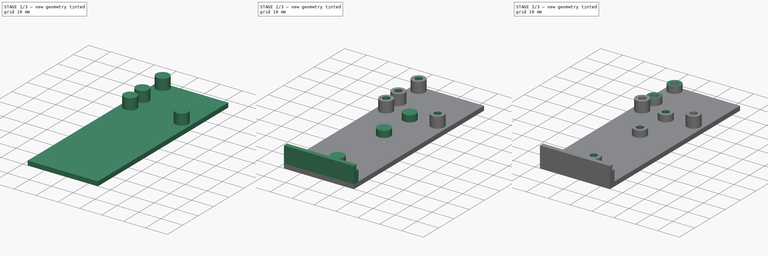
[diagram: build sequence overview — one tinted view per stage of 3, left to right]
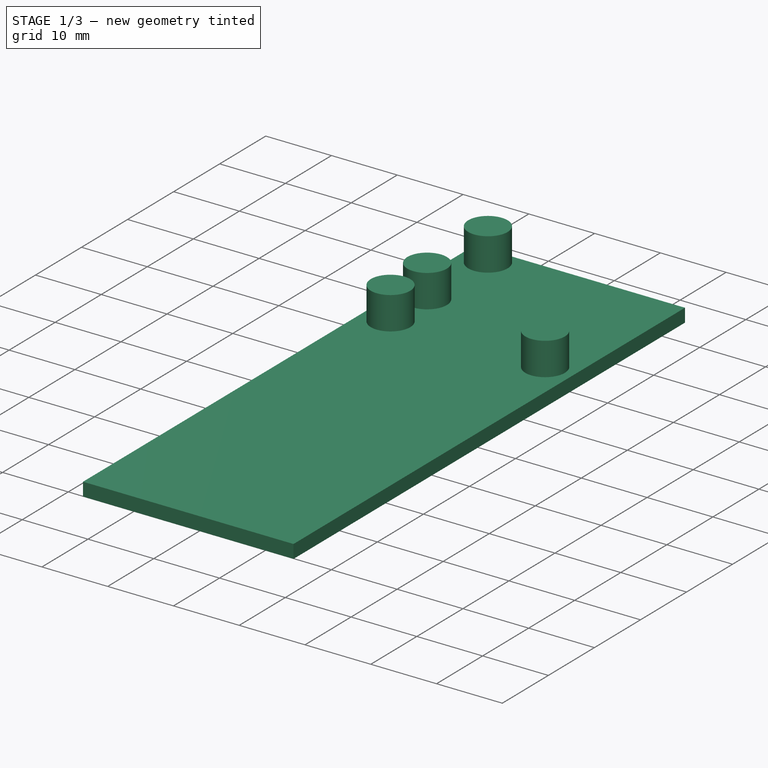
[diagram: stage 1 of 3 — iso view after this stage's code; geometry added in this stage tinted green]
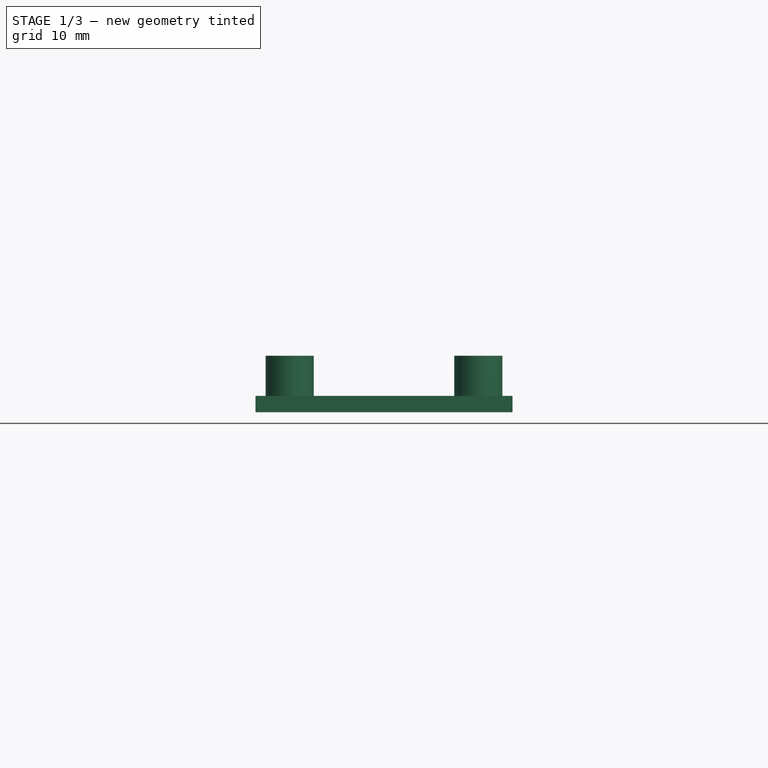
[diagram: stage 1 of 3 — front view after this stage's code; geometry added in this stage tinted green]
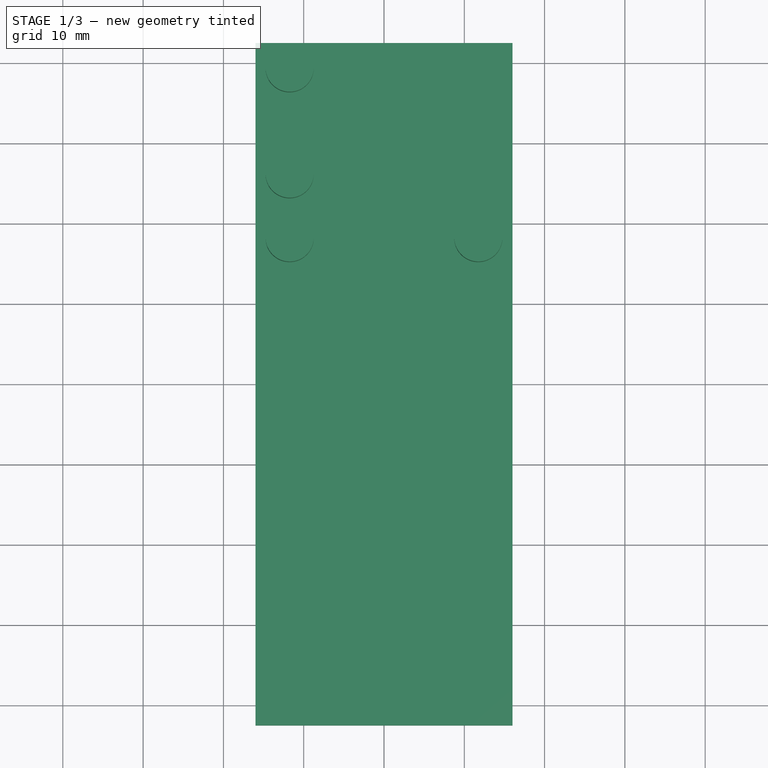
[diagram: stage 1 of 3 — top view after this stage's code; geometry added in this stage tinted green]
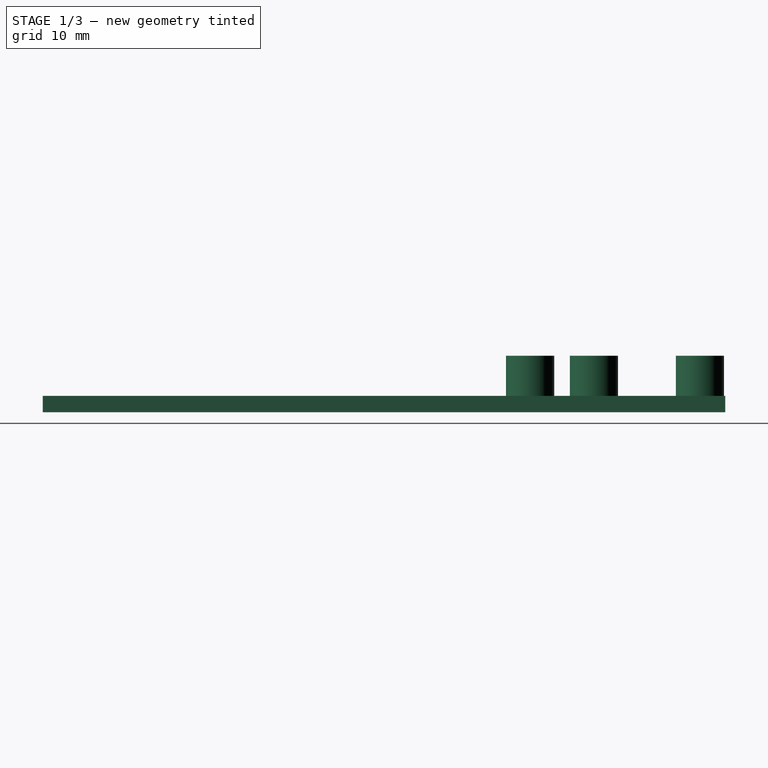
[diagram: stage 1 of 3 — right view after this stage's code; geometry added in this stage tinted green]
FCSTD DOCUMENT  (FreeCAD 0.19R)
Label: dimmer+digispark
License: All rights reserved
LicenseURL: http://en.wikipedia.org/wiki/All_rights_reserved
objects: Sketcher::SketchObject×4, PartDesign::Pad×4, PartDesign::Hole×2, PartDesign::Pocket×1, PartDesign::Body×1
note: 19 computed .brp shape members not serialized (recipe doc carries the construction recipe); baked Part::Feature solids carry a one-line shape summary decoded from their .brp

FEATURE [Sketcher::SketchObject] Sketch
  MapMode = 5
  Support = -> [XY_Plane]
  sketch-geometry (4):
    g0: LineSegment StartX=-16 StartY=42.5 StartZ=0 EndX=16 EndY=42.5 EndZ=0
    g1: LineSegment StartX=16 StartY=42.5 StartZ=0 EndX=16 EndY=-42.5 EndZ=0
    g2: LineSegment StartX=16 StartY=-42.5 StartZ=0 EndX=-16 EndY=-42.5 EndZ=0
    g3: LineSegment StartX=-16 StartY=-42.5 StartZ=0 EndX=-16 EndY=42.5 EndZ=0
  constraints (10):
    c: Coincident(g0,g1)
    c: Coincident(g1,g2)
    c: Coincident(g2,g3)
    c: Coincident(g3,g0)
    c: Horizontal(g2)
    c: Vertical(g1)
    c: Symmetric(g0,g0,g-2)
    c: Symmetric(g2,g0,g-1)
    c: DistanceY(g3,g3) = 85
    c: DistanceX(g0,g0) = 32
FEATURE [PartDesign::Pad] Pad  label="площадка основания"
  Length = 2.05
  Length2 = 100
  Profile = -> Sketch
  Type = 0
FEATURE [Sketcher::SketchObject] Sketch002
  ExternalGeometry = -> [Pad]
  MapMode = 5
  Placement = pos=(0,0,2.05) rot=(0,0,1;0rad)
  Support = -> [Pad]
  sketch-geometry (12):
    g0: LineSegment [constr] StartX=-15 StartY=21.5 StartZ=0 EndX=15 EndY=21.5 EndZ=0
    g1: LineSegment [constr] StartX=15 StartY=21.5 StartZ=0 EndX=15 EndY=-41.5 EndZ=0
    g2: LineSegment [constr] StartX=15 StartY=-41.5 StartZ=0 EndX=-15 EndY=-41.5 EndZ=0
    g3: LineSegment [constr] StartX=-15 StartY=-41.5 StartZ=0 EndX=-15 EndY=21.5 EndZ=0
    g4: Circle CenterX=-11.75 CenterY=18.2 CenterZ=0 NormalX=0 NormalY=0 NormalZ=1 AngleXU=0 Radius=3
    g5: Circle CenterX=11.75 CenterY=18.2 CenterZ=0 NormalX=0 NormalY=0 NormalZ=1 AngleXU=0 Radius=3
    g6: LineSegment [constr] StartX=-13.95 StartY=41.5 StartZ=0 EndX=6.55 EndY=41.5 EndZ=0
    g7: LineSegment [constr] StartX=6.55 StartY=41.5 StartZ=0 EndX=6.55 EndY=24 EndZ=0
    g8: LineSegment [constr] StartX=6.55 StartY=24 StartZ=0 EndX=-13.95 EndY=24 EndZ=0
    g9: LineSegment [constr] StartX=-13.95 StartY=24 StartZ=0 EndX=-13.95 EndY=41.5 EndZ=0
    g10: Circle CenterX=-11.75 CenterY=39.35 CenterZ=0 NormalX=0 NormalY=0 NormalZ=1 AngleXU=0 Radius=3
    g11: Circle CenterX=-11.75 CenterY=26.15 CenterZ=0 NormalX=0 NormalY=0 NormalZ=1 AngleXU=0 Radius=3
  constraints (34):
    c: Coincident(g0,g1)
    c: Coincident(g1,g2)
    c: Coincident(g2,g3)
    c: Coincident(g3,g0)
    c: Horizontal(g2)
    c: Vertical(g1)
    c: Vertical(g3)
    c: DistanceY(g3,g3) = 63
    c: DistanceX(g0,g0) = 30
    c: Symmetric(g0,g0,g-2)
    c: Symmetric(g4,g5,g-2)
    c: DistanceX(g4,g5) = 23.5
    c: DistanceY(g5,g0) = 3.3
    c: DistanceY(g-3,g2) = 1
    c: Diameter(g5) = 6
    c: Equal(g5,g4)
    c: Coincident(g6,g7)
    c: Coincident(g7,g8)
    c: Coincident(g8,g9)
    c: Coincident(g9,g6)
    c: Horizontal(g8)
    c: Vertical(g7)
    c: Vertical(g9)
    c: DistanceX(g6,g6) = 20.5
    c: DistanceY(g7,g7) = 17.5
    c: DistanceY(g6,g-4) = 1
    c: Horizontal(g6)
    c: Vertical(g11,g10)
    c: Diameter(g10) = 6
    c: Equal(g10,g11)
    c: DistanceY(g8,g11) = 2.15
    c: DistanceY(g10,g6) = 2.15
    c: DistanceX(g10,g6) = 18.3
    c: Vertical(g11,g4)
FEATURE [PartDesign::Pad] Pad001  label="опоры"
  BaseFeature = -> Pad
  Length = 5
  Length2 = 100
  Profile = -> Sketch002
  Type = 0
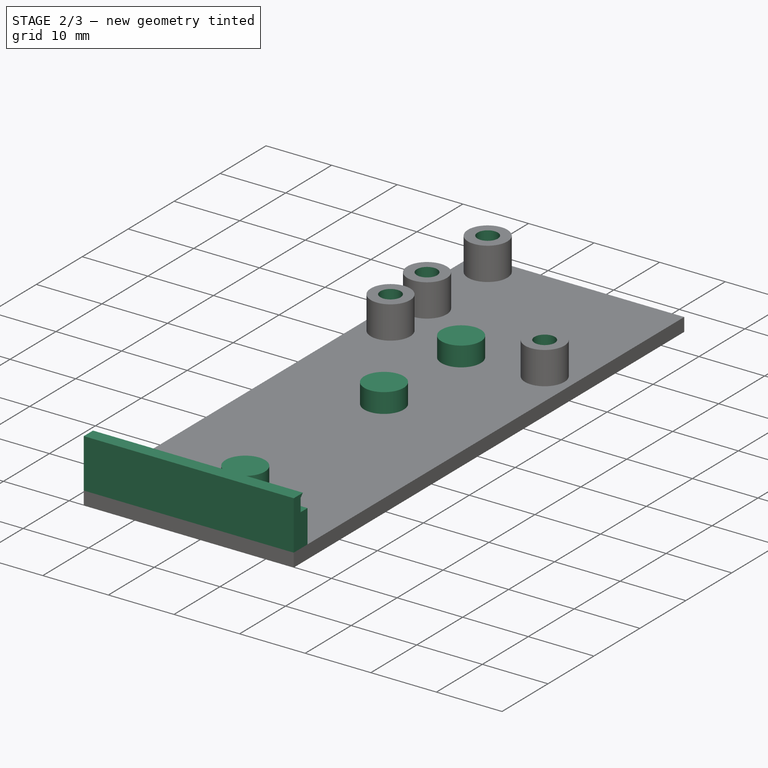
[diagram: stage 2 of 3 — iso view after this stage's code; geometry added in this stage tinted green]
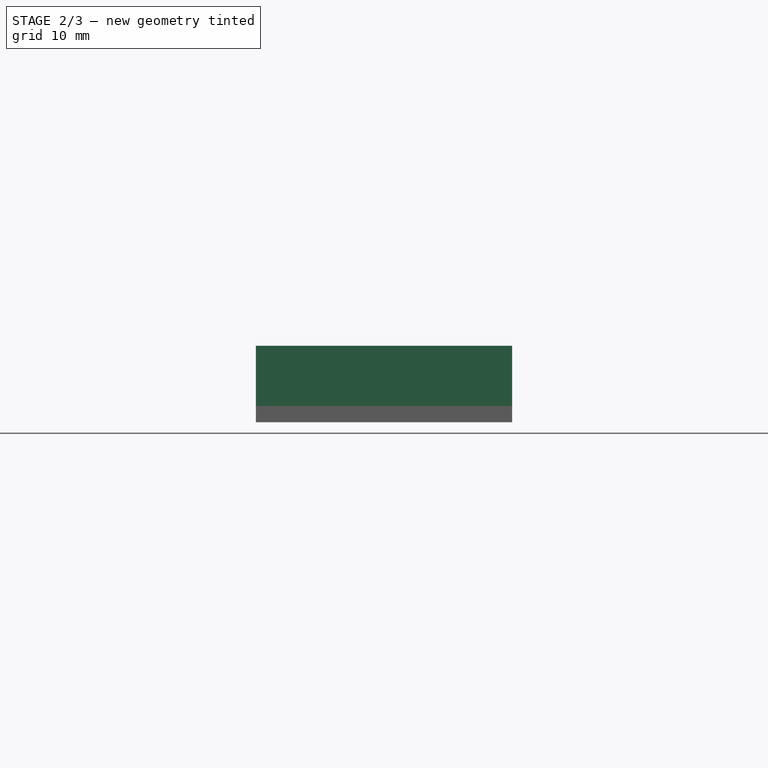
[diagram: stage 2 of 3 — front view after this stage's code; geometry added in this stage tinted green]
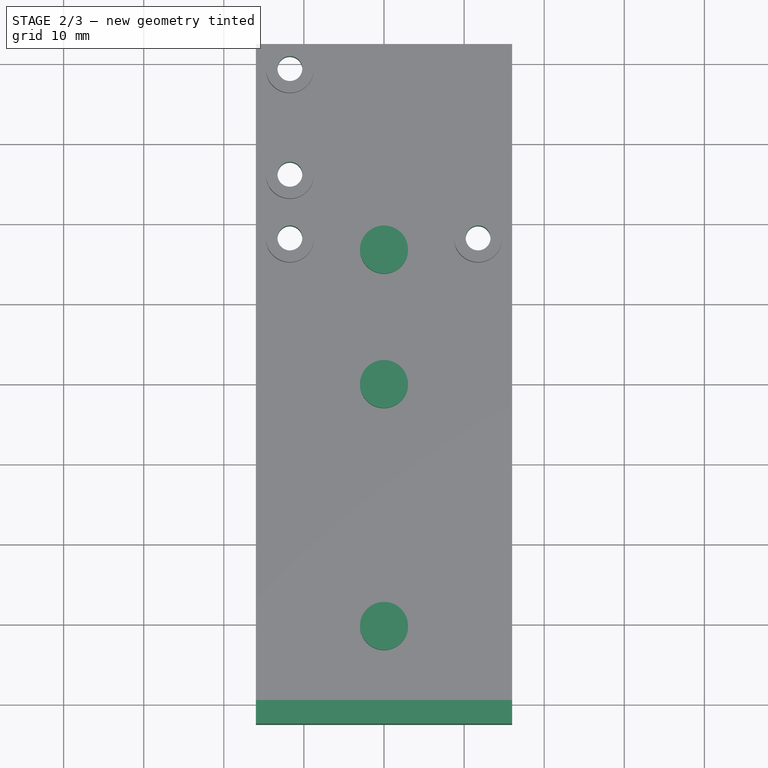
[diagram: stage 2 of 3 — top view after this stage's code; geometry added in this stage tinted green]
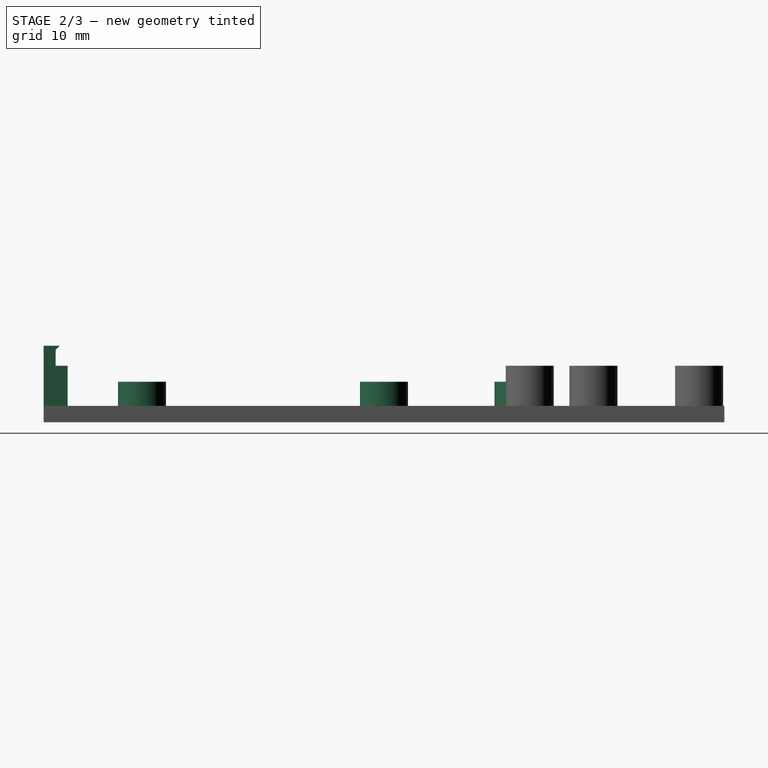
[diagram: stage 2 of 3 — right view after this stage's code; geometry added in this stage tinted green]
FEATURE [Sketcher::SketchObject] Sketch003
  ExternalGeometry = -> [Pad001]
  MapMode = 5
  Placement = pos=(-16,0,0) rot=(0.57735,-0.57735,-0.57735;2.0944rad)
  Support = -> [Pad001]
  sketch-geometry (7):
    g0: LineSegment StartX=42.5 StartY=2.05 StartZ=0 EndX=42.5 EndY=9.55 EndZ=0
    g1: LineSegment StartX=42.5 StartY=9.55 StartZ=0 EndX=40.5 EndY=9.55 EndZ=0
    g2: LineSegment StartX=41 StartY=7.05 StartZ=0 EndX=39.5 EndY=7.05 EndZ=0
    g3: LineSegment StartX=39.5 StartY=7.05 StartZ=0 EndX=39.5 EndY=2.05 EndZ=0
    g4: LineSegment StartX=39.5 StartY=2.05 StartZ=0 EndX=42.5 EndY=2.05 EndZ=0
    g5: LineSegment StartX=41 StartY=7.05 StartZ=0 EndX=41 EndY=9.05 EndZ=0
    g6: LineSegment StartX=41 StartY=9.05 StartZ=0 EndX=40.5 EndY=9.55 EndZ=0
  constraints (20):
    c: Coincident(g0,g-3)
    c: Vertical(g0)
    c: Coincident(g1,g0)
    c: Horizontal(g1)
    c: Coincident(g3,g2)
    c: PointOnObject(g3,g-3)
    c: Vertical(g3)
    c: Coincident(g4,g3)
    c: Coincident(g4,g0)
    c: Horizontal(g2)
    c: DistanceX(g4,g4) = 3
    c: DistanceX(g2,g2) = 1.5
    c: Coincident(g5,g2)
    c: Vertical(g5)
    c: Coincident(g6,g5)
    c: Coincident(g6,g1)
    c: DistanceY(g5,g5) = 2
    c: DistanceY(g3,g3) = 5
    c: Angle(g6,g1) = 0.785398
    c: DistanceX(g1,g1) = 2
FEATURE [PartDesign::Hole] Hole
  BaseFeature = -> Pad001
  Depth = 25
  DepthType = 0
  Diameter = 3.1
  DrillPoint = 1
  DrillPointAngle = 118
  HoleCutCountersinkAngle = 90
  HoleCutDepth = 0
  HoleCutDiameter = 0
  HoleCutType = 0
  ModelActualThread = false
  Profile = -> Pad001 [Face13,Face12,Face11,Face14]
  Tapered = false
  TaperedAngle = 90
  ThreadAngle = 0
  ThreadClass = 0
  ThreadCutOffInner = 0
  ThreadCutOffOuter = 0
  ThreadDirection = 0
  ThreadFit = 0
  ThreadPitch = 0
  ThreadSize = 0
  ThreadType = 0
  Threaded = false
FEATURE [PartDesign::Pad] Pad002  label="скоба"
  BaseFeature = -> Hole
  Length = 10
  Length2 = 100
  Profile = -> Sketch003
  Reversed = true
  Type = 3
  UpToFace = -> Pad001 [Face3]
FEATURE [Sketcher::SketchObject] Sketch004
  MapMode = 5
  Placement = pos=(0,0,2.05) rot=(0,0,1;0rad)
  Support = -> [Pad002]
  sketch-geometry (3):
    g0: Circle CenterX=0 CenterY=0 CenterZ=0 NormalX=0 NormalY=0 NormalZ=1 AngleXU=0 Radius=3
    g1: Circle CenterX=0 CenterY=16.789 CenterZ=0 NormalX=0 NormalY=0 NormalZ=1 AngleXU=0 Radius=3
    g2: Circle CenterX=0 CenterY=-30.211 CenterZ=0 NormalX=0 NormalY=0 NormalZ=1 AngleXU=0 Radius=3
  constraints (7):
    c: Coincident(g0,g-1)
    c: PointOnObject(g1,g-2)
    c: DistanceY(g2,g1) = 47
    c: Diameter(g2) = 6
    c: Equal(g2,g0)
    c: Equal(g2,g1)
    c: PointOnObject(g2,g-2)
FEATURE [PartDesign::Pad] Pad003
  BaseFeature = -> Pad002
  Length = 3
  Length2 = 100
  Profile = -> Sketch004
  Type = 0
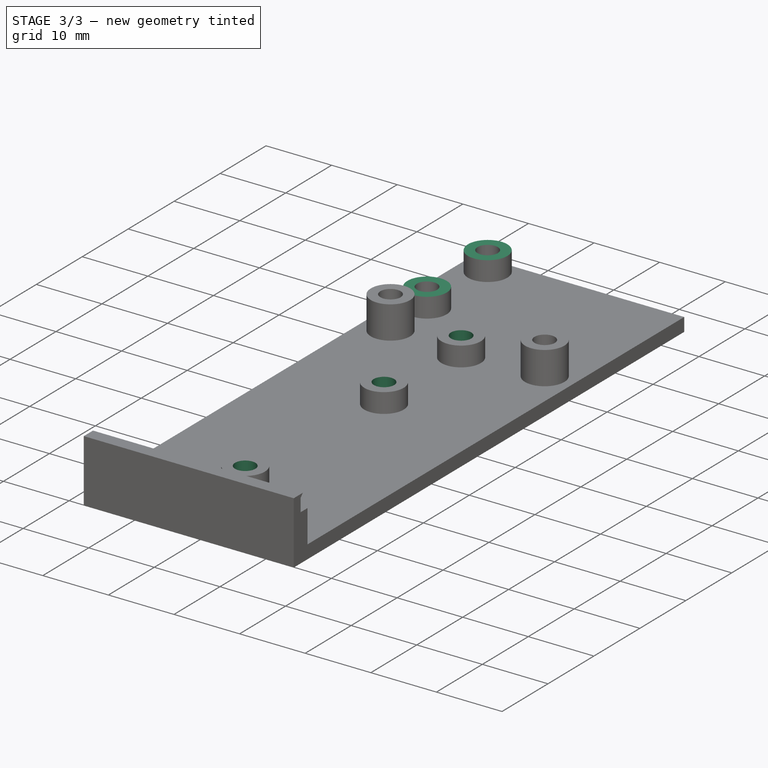
[diagram: stage 3 of 3 — iso view after this stage's code; geometry added in this stage tinted green]
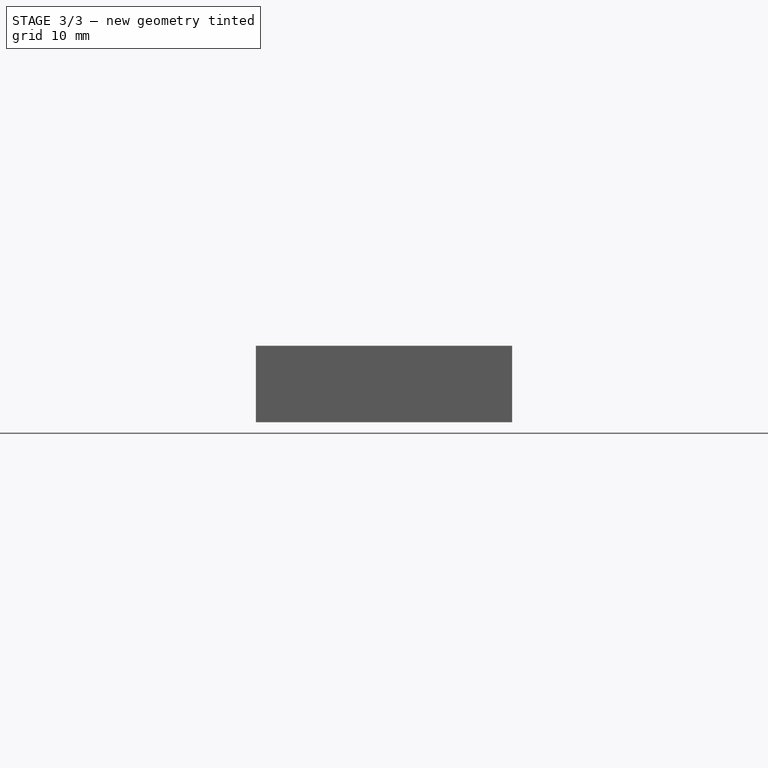
[diagram: stage 3 of 3 — front view after this stage's code; geometry added in this stage tinted green]
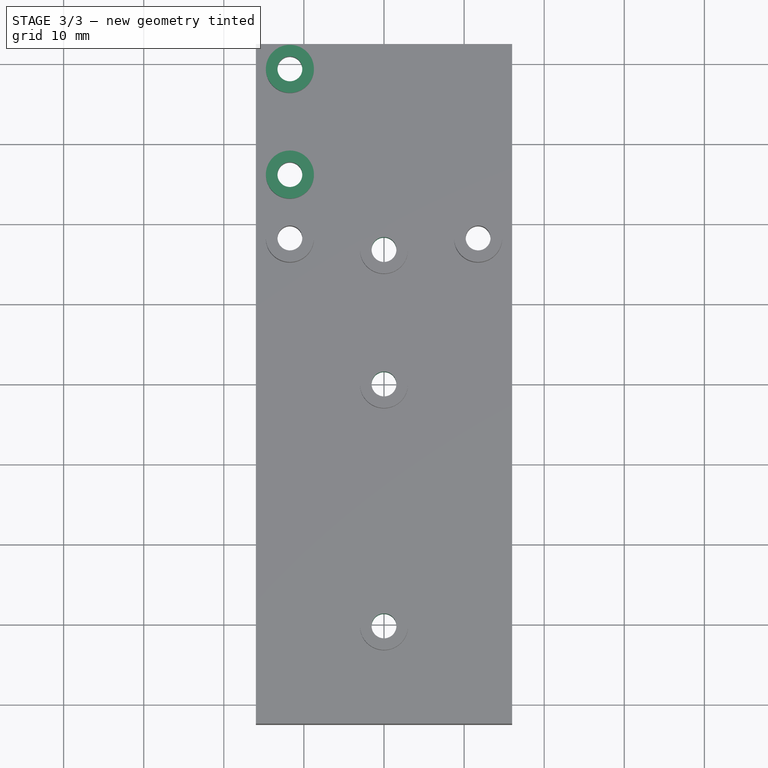
[diagram: stage 3 of 3 — top view after this stage's code; geometry added in this stage tinted green]
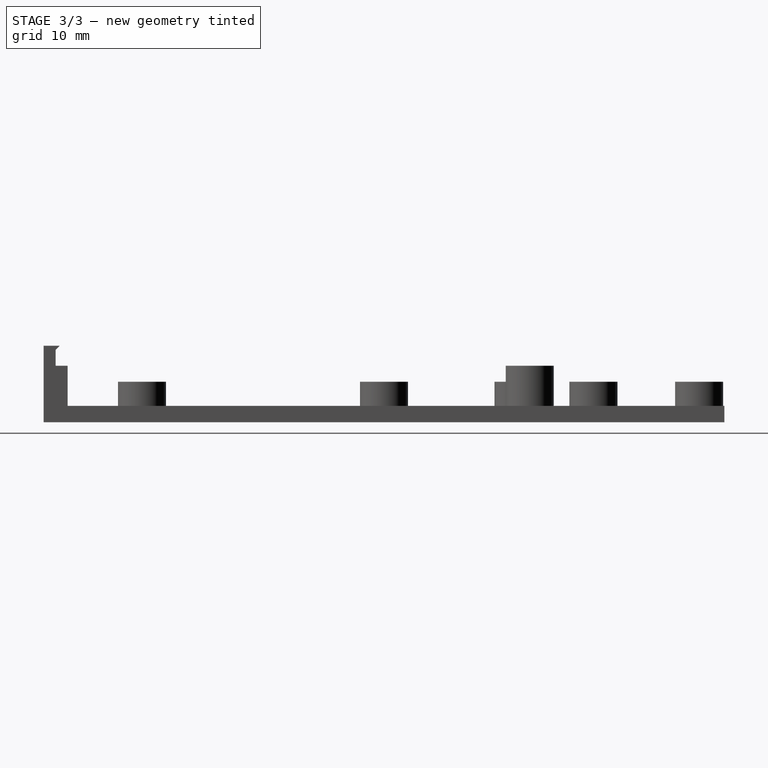
[diagram: stage 3 of 3 — right view after this stage's code; geometry added in this stage tinted green]
FEATURE [PartDesign::Hole] Hole001
  BaseFeature = -> Pad003
  Depth = 25
  DepthType = 0
  Diameter = 3.1
  DrillPoint = 1
  DrillPointAngle = 118
  HoleCutCountersinkAngle = 90
  HoleCutDepth = 0
  HoleCutDiameter = 0
  HoleCutType = 0
  ModelActualThread = false
  Profile = -> Pad003 [Face30,Face32,Face31]
  Tapered = false
  TaperedAngle = 90
  ThreadAngle = 0
  ThreadClass = 0
  ThreadCutOffInner = 0
  ThreadCutOffOuter = 0
  ThreadDirection = 0
  ThreadFit = 0
  ThreadPitch = 0
  ThreadSize = 0
  ThreadType = 0
  Threaded = false
FEATURE [PartDesign::Pocket] Pocket
  BaseFeature = -> Hole001
  Length = 2
  Length2 = 100
  Profile = -> Hole001 [Face35,Face34]
  Type = 0
FEATURE [PartDesign::Body] Body  label="pwm_control_plate"
  Group = -> [Sketch,Pad,Sketch002,Pad001,Sketch003,Hole,Pad002,Sketch004,Pad003,Hole001,Pocket]
  Origin = -> Origin
  Tip = -> Pocket
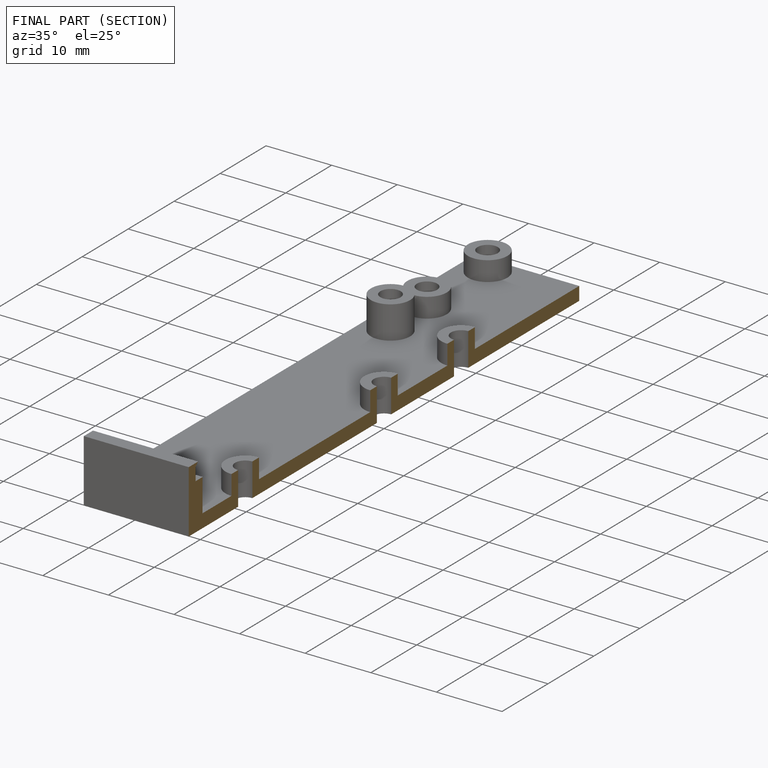
[diagram: finished part — half-section view (interior)]
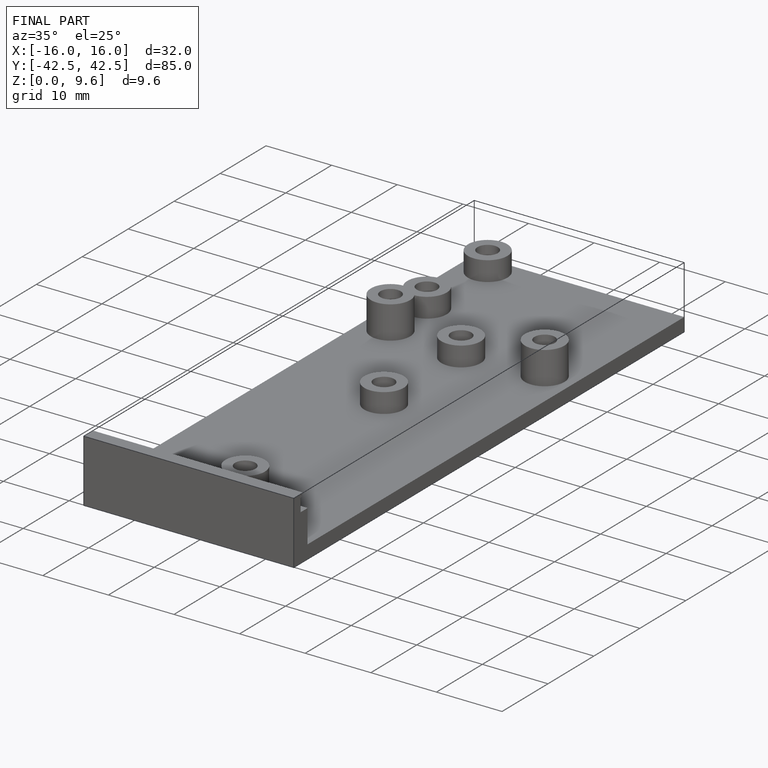
[diagram: finished part — iso view with bounding-box wireframe]
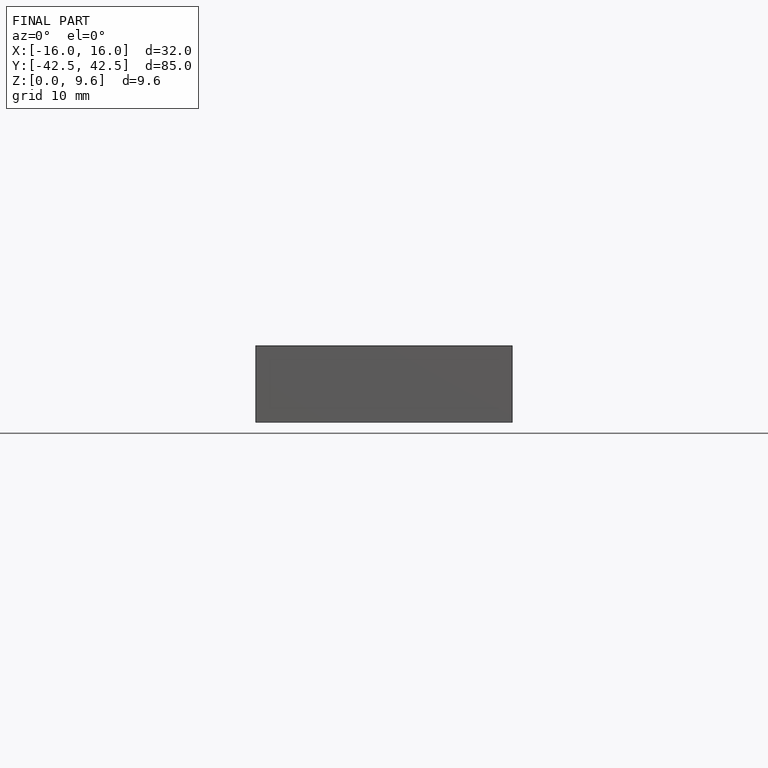
[diagram: finished part — front view with bounding-box wireframe]
